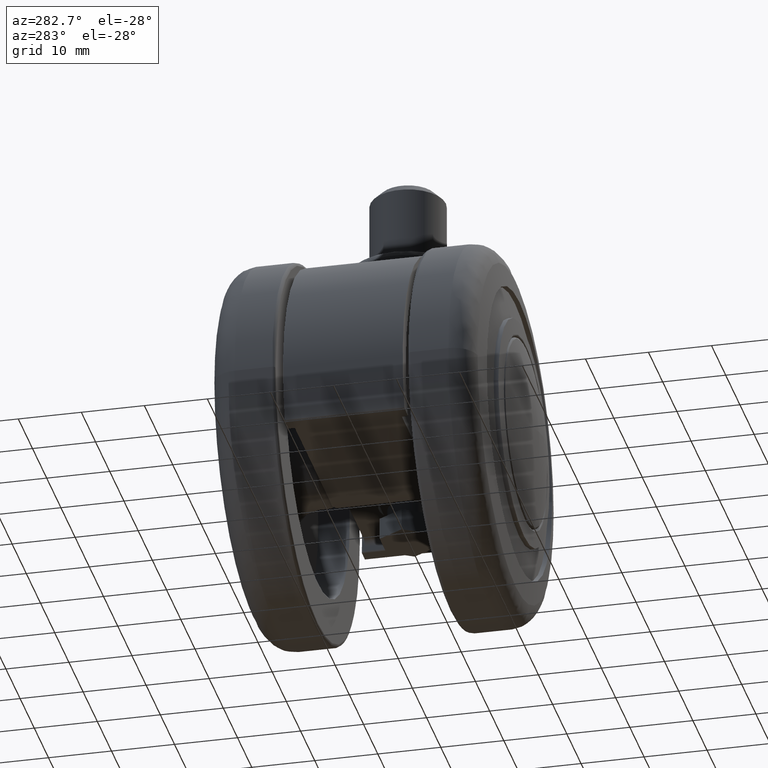
[diagram: clean part render]
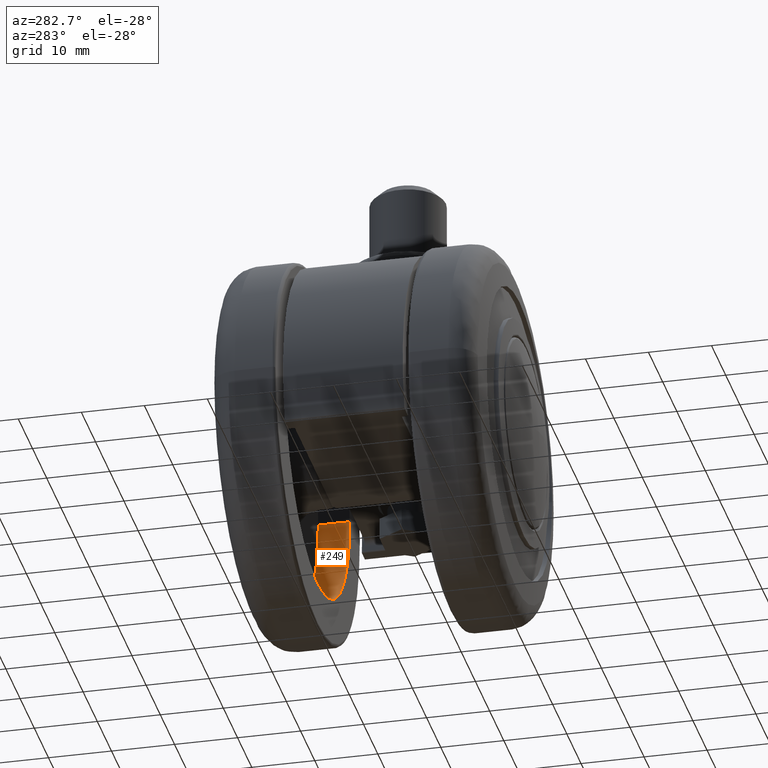
[diagram: same view with one face highlighted and labeled with its STEP entity id]
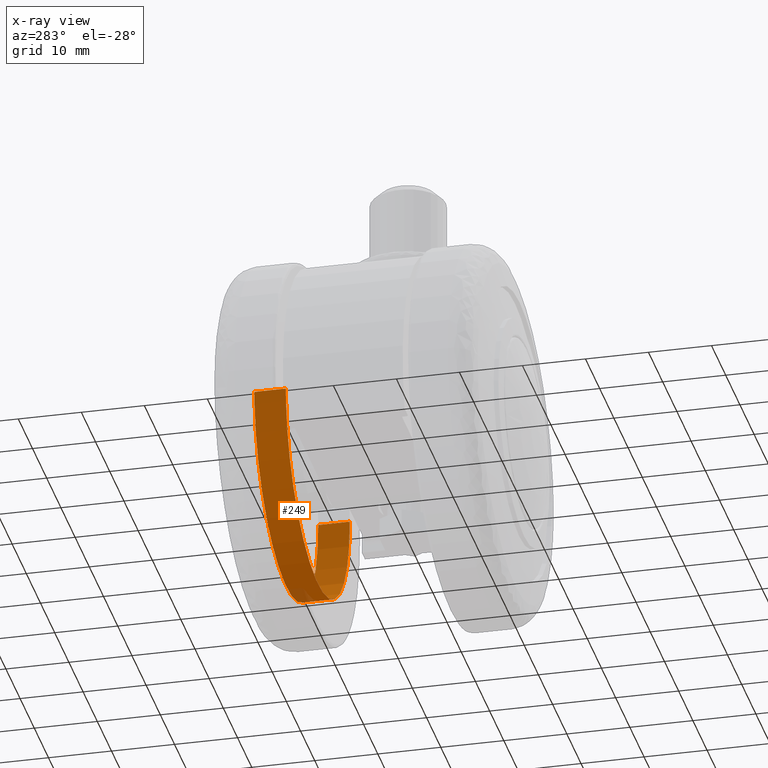
[diagram: x-ray of the same camera — body ghosted, the highlighted face saturated]
A machine part, auxiliary view. The second image highlights one B-rep face of the part: STEP entity #249.
The next image is the same camera in x-ray: the body ghosted, the highlighted face saturated — about 3% of this face is hidden behind the body in this view.
In plain terms, the highlighted cylindrical surface (partial cylindrical patch) has radius 22.5 mm, axis along (-0, -1, 0).
Its self-contained STEP definition (entity closure, byte-faithful):
#249=ADVANCED_FACE('',(#1232),#1231,.F.);
#1231=CYLINDRICAL_SURFACE('',#3874,2.25000000000E+01);
#1232=FACE_OUTER_BOUND('',#3875,.T.);
#3871=CARTESIAN_POINT('',(0.00000000000E+00,0.00000000000E+00,4.50000000000E+00));
#3872=DIRECTION('',(-0.00000000000E+00,-0.00000000000E+00,-1.00000000000E+00));
#3873=DIRECTION('',(-1.00000000000E+00,-0.00000000000E+00,-0.00000000000E+00));
#3874=AXIS2_PLACEMENT_3D('',#3871,#3872,#3873);
#3875=EDGE_LOOP('',(#4938,#4939,#4940,#4941,#4942,#4943));
#4938=ORIENTED_EDGE('',*,*,#5428,.T.);
#4939=ORIENTED_EDGE('',*,*,#5430,.T.);
#4940=ORIENTED_EDGE('',*,*,#5463,.T.);
#4941=ORIENTED_EDGE('',*,*,#5421,.T.);
#4942=ORIENTED_EDGE('',*,*,#5423,.T.);
#4943=ORIENTED_EDGE('',*,*,#5464,.F.);
#5421=EDGE_CURVE('',#6918,#6919,#6920,.T.);
#5423=EDGE_CURVE('',#6919,#6926,#6933,.T.);
#5428=EDGE_CURVE('',#6967,#6968,#6969,.T.);
#5430=EDGE_CURVE('',#6968,#6975,#6982,.T.);
#5463=EDGE_CURVE('',#6975,#6918,#7204,.T.);
#5464=EDGE_CURVE('',#6967,#6926,#7210,.T.);
#6918=VERTEX_POINT('',#9161);
#6919=VERTEX_POINT('',#9162);
#6920=CIRCLE('',#9166,2.25000000000E+01);
#6926=VERTEX_POINT('',#9167);
#6933=CIRCLE('',#9175,2.25000000000E+01);
#6967=VERTEX_POINT('',#9196);
#6968=VERTEX_POINT('',#9197);
#6969=CIRCLE('',#9201,2.25000000000E+01);
#6975=VERTEX_POINT('',#9202);
#6982=CIRCLE('',#9210,2.25000000000E+01);
#7204=(BOUNDED_CURVE() B_SPLINE_CURVE(1,(#9365,#9366),.UNSPECIFIED.,.F.,.F.) B_SPLINE_CURVE_WITH_KNOTS((2,2),(8.33333313467E-02,9.16666664002E-01),.UNSPECIFIED.) CURVE() GEOMETRIC_REPRESENTATION_ITEM() RATIONAL_B_SPLINE_CURVE((1.00000000000E+00,1.00000000000E+00)) REPRESENTATION_ITEM('') );
#7210=(BOUNDED_CURVE() B_SPLINE_CURVE(1,(#9367,#9368),.UNSPECIFIED.,.F.,.F.) B_SPLINE_CURVE_WITH_KNOTS((2,2),(8.33333333333E-02,9.16666666667E-01),.UNSPECIFIED.) CURVE() GEOMETRIC_REPRESENTATION_ITEM() RATIONAL_B_SPLINE_CURVE((7.50000000000E-01,7.50000000000E-01)) REPRESENTATION_ITEM('') );
#9161=CARTESIAN_POINT('',(-2.25000000000E+01,-8.03386126938E-08,2.00000000000E+00));
#9162=CARTESIAN_POINT('',(-2.23970834024E+01,2.14957090231E+00,2.00000000000E+00));
#9163=CARTESIAN_POINT('',(0.00000000000E+00,0.00000000000E+00,2.00000000000E+00));
#9164=DIRECTION('',(0.00000000000E+00,0.00000000000E+00,-1.00000000000E+00));
#9165=DIRECTION('',(-9.95425928997E-01,9.55364845470E-02,0.00000000000E+00));
#9166=AXIS2_PLACEMENT_3D('',#9163,#9164,#9165);
#9167=CARTESIAN_POINT('',(2.24999999999E+01,-5.45503734179E-05,2.00000000000E+00));
#9172=CARTESIAN_POINT('',(0.00000000000E+00,0.00000000000E+00,2.00000000000E+00));
#9173=DIRECTION('',(0.00000000000E+00,0.00000000000E+00,-1.00000000000E+00));
#9174=DIRECTION('',(-9.95425928997E-01,9.55364845470E-02,0.00000000000E+00));
#9175=AXIS2_PLACEMENT_3D('',#9172,#9173,#9174);
#9196=CARTESIAN_POINT('',(2.24999999999E+01,-5.45502832697E-05,7.00000000000E+00));
#9197=CARTESIAN_POINT('',(-2.23970834024E+01,2.14957090231E+00,7.00000000000E+00));
#9198=CARTESIAN_POINT('',(0.00000000000E+00,0.00000000000E+00,7.00000000000E+00));
#9199=DIRECTION('',(0.00000000000E+00,0.00000000000E+00,1.00000000000E+00));
#9200=DIRECTION('',(-9.95425928997E-01,9.55364845470E-02,0.00000000000E+00));
#9201=AXIS2_PLACEMENT_3D('',#9198,#9199,#9200);
#9202=CARTESIAN_POINT('',(-2.25000000000E+01,-8.03386128400E-08,7.00000000000E+00));
#9207=CARTESIAN_POINT('',(0.00000000000E+00,0.00000000000E+00,7.00000000000E+00));
#9208=DIRECTION('',(0.00000000000E+00,0.00000000000E+00,1.00000000000E+00));
#9209=DIRECTION('',(-9.95425928997E-01,9.55364845470E-02,0.00000000000E+00));
#9210=AXIS2_PLACEMENT_3D('',#9207,#9208,#9209);
#9365=CARTESIAN_POINT('',(-2.25000000000E+01,0.00000000000E+00,7.00000001192E+00));
#9366=CARTESIAN_POINT('',(-2.25000000000E+01,0.00000000000E+00,2.00000001599E+00));
#9367=CARTESIAN_POINT('',(2.25000000000E+01,0.00000000000E+00,7.00000000000E+00));
#9368=CARTESIAN_POINT('',(2.25000000000E+01,0.00000000000E+00,2.00000000000E+00));